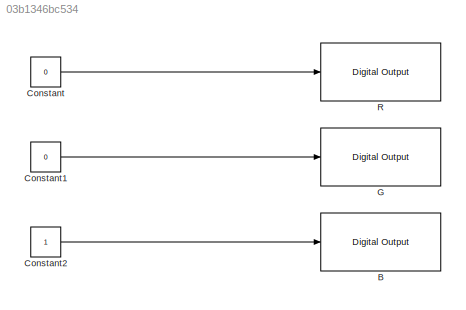
MODEL slx_03b1346bc534
KIND model
CONFIG AbsTol = auto
CONFIG EnableMultiTasking = on
CONFIG FixedStep = auto
CONFIG MaxStep = auto
CONFIG MinStep = auto
CONFIG RelTol = 1e-3
CONFIG SampleTimeConstraint = Unconstrained
CONFIG SolverName = FixedStepAuto
CONFIG StartTime = 0.0
CONFIG StopTime = inf
BLOCK [Reference] B  REF=arduinolib/Digital Output
  SourceBlock = arduinolib/Digital Output
  SourceType = Arduino Digital Output
BLOCK [Constant] Constant
  OutDataTypeStr = int8
  Value = 0
BLOCK [Constant] Constant1
  OutDataTypeStr = int8
  Value = 0
BLOCK [Constant] Constant2
  OutDataTypeStr = int8
BLOCK [Reference] G  REF=arduinolib/Digital Output
  SourceBlock = arduinolib/Digital Output
  SourceType = Arduino Digital Output
BLOCK [Reference] R  REF=arduinolib/Digital Output
  SourceBlock = arduinolib/Digital Output
  SourceType = Arduino Digital Output
LINE Constant1:1 -> G:1
LINE Constant2:1 -> B:1
LINE Constant:1 -> R:1
